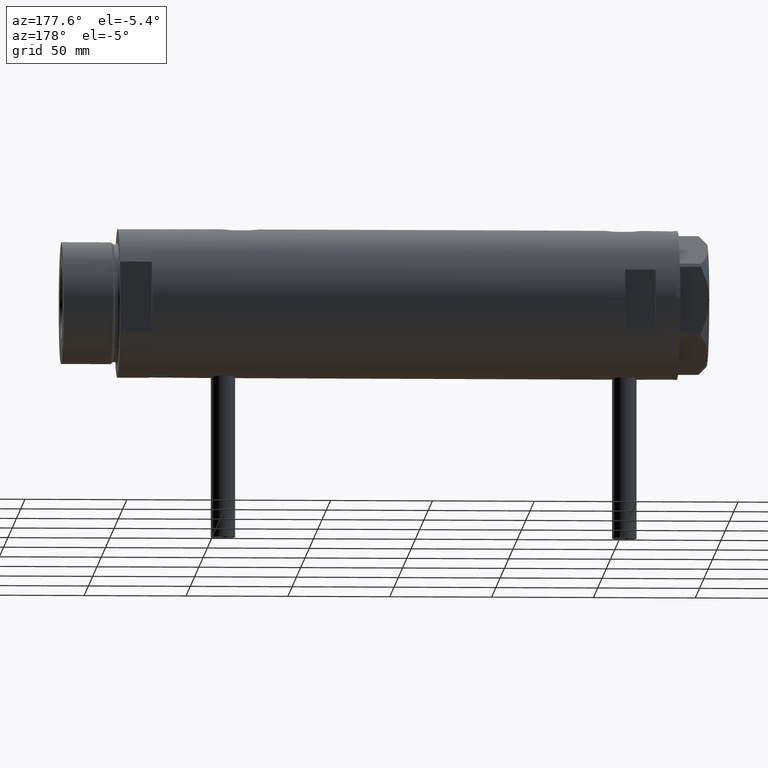
[diagram: clean part render]
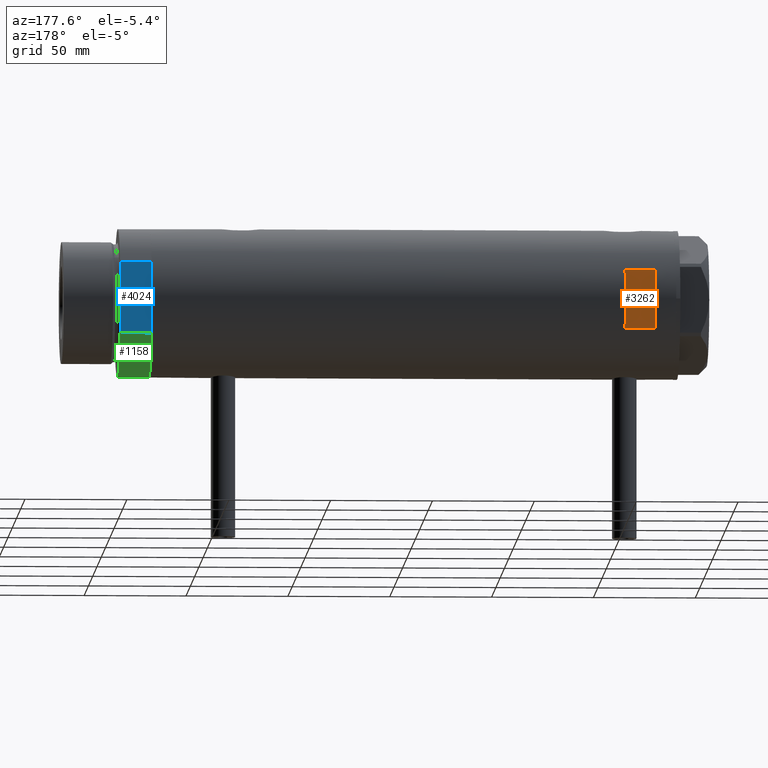
[diagram: same view with three faces highlighted in distinct colors, each labeled with its STEP entity id]
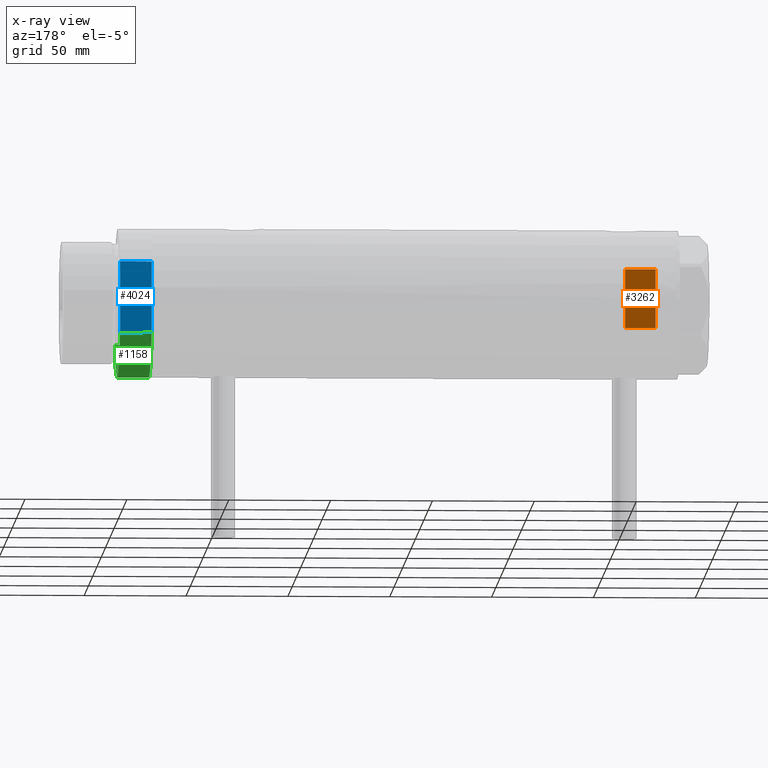
[diagram: x-ray of the same camera — body ghosted, the three highlighted faces saturated]
A machine part, auxiliary view with three faces highlighted in distinct colors.
The next image is the same camera in x-ray (body ghosted, the three faces saturated) — at least one of them is partly hidden behind the body in this view.
Their STEP definitions:

[orange] entity #3262 — the highlighted planar face has unit normal (0, -1, -0).
#503 = EDGE_CURVE ( 'NONE', #3055, #765, #1565, .T. ) ;
#765 = VERTEX_POINT ( 'NONE', #2075 ) ;
#832 = ORIENTED_EDGE ( 'NONE', *, *, #3891, .T. ) ;
#881 = VECTOR ( 'NONE', #2010, 1000.000000000000000 ) ;
#942 = CARTESIAN_POINT ( 'NONE',  ( -36.50000000000000000, 33.50000000000000000, 103.6500000000000057 ) ) ;
#952 = EDGE_CURVE ( 'NONE', #3055, #2279, #1985, .T. ) ;
#1109 = DIRECTION ( 'NONE',  ( 0.000000000000000000, -1.000000000000000000, -0.000000000000000000 ) ) ;
#1137 = LINE ( 'NONE', #2955, #2898 ) ;
#1282 = VERTEX_POINT ( 'NONE', #4286 ) ;
#1462 = ORIENTED_EDGE ( 'NONE', *, *, #1722, .T. ) ;
#1565 = LINE ( 'NONE', #2638, #2165 ) ;
#1722 = EDGE_CURVE ( 'NONE', #765, #1282, #1137, .T. ) ;
#1824 = FACE_OUTER_BOUND ( 'NONE', #2566, .T. ) ;
#1985 = LINE ( 'NONE', #942, #881 ) ;
#2003 = ORIENTED_EDGE ( 'NONE', *, *, #952, .F. ) ;
#2010 = DIRECTION ( 'NONE',  ( 1.000000000000000000, -0.000000000000000000, -0.000000000000000000 ) ) ;
#2075 = CARTESIAN_POINT ( 'NONE',  ( -14.49137674618942739, 33.50000000000000000, 118.6500000000000057 ) ) ;
#2165 = VECTOR ( 'NONE', #4431, 1000.000000000000000 ) ;
#2279 = VERTEX_POINT ( 'NONE', #4730 ) ;
#2284 = LINE ( 'NONE', #4473, #3752 ) ;
#2507 = AXIS2_PLACEMENT_3D ( 'NONE', #4785, #1109, #4067 ) ;
#2529 = ORIENTED_EDGE ( 'NONE', *, *, #503, .T. ) ;
#2566 = EDGE_LOOP ( 'NONE', ( #832, #2003, #2529, #1462 ) ) ;
#2628 = DIRECTION ( 'NONE',  ( -0.000000000000000000, -0.000000000000000000, -1.000000000000000000 ) ) ;
#2638 = CARTESIAN_POINT ( 'NONE',  ( -14.49137674618942739, 33.50000000000000000, -128.6500000000000057 ) ) ;
#2715 = CARTESIAN_POINT ( 'NONE',  ( -14.49137674618942917, 33.50000000000000000, 103.6500000000000057 ) ) ;
#2898 = VECTOR ( 'NONE', #3364, 1000.000000000000000 ) ;
#2955 = CARTESIAN_POINT ( 'NONE',  ( -36.50000000000000000, 33.50000000000000000, 118.6500000000000057 ) ) ;
#3055 = VERTEX_POINT ( 'NONE', #2715 ) ;
#3262 = ADVANCED_FACE ( 'NONE', ( #1824 ), #3308, .F. ) ;
#3308 = PLANE ( 'NONE',  #2507 ) ;
#3364 = DIRECTION ( 'NONE',  ( 1.000000000000000000, -0.000000000000000000, -0.000000000000000000 ) ) ;
#3752 = VECTOR ( 'NONE', #2628, 1000.000000000000000 ) ;
#3891 = EDGE_CURVE ( 'NONE', #1282, #2279, #2284, .T. ) ;
#4067 = DIRECTION ( 'NONE',  ( 0.000000000000000000, 0.000000000000000000, -1.000000000000000000 ) ) ;
#4286 = CARTESIAN_POINT ( 'NONE',  ( 14.49137674618942739, 33.50000000000000000, 118.6500000000000057 ) ) ;
#4431 = DIRECTION ( 'NONE',  ( 0.000000000000000000, 0.000000000000000000, 1.000000000000000000 ) ) ;
#4473 = CARTESIAN_POINT ( 'NONE',  ( 14.49137674618942739, 33.50000000000000000, -128.6500000000000057 ) ) ;
#4730 = CARTESIAN_POINT ( 'NONE',  ( 14.49137674618942917, 33.50000000000000000, 103.6500000000000057 ) ) ;
#4785 = CARTESIAN_POINT ( 'NONE',  ( -36.50000000000000000, 33.50000000000000000, 118.6500000000000057 ) ) ;

[blue] entity #4024 — the highlighted planar face has unit normal (0, -1, -0).
#18 = CARTESIAN_POINT ( 'NONE',  ( 0.000000000000000000, 32.00000000000000000, 0.000000000000000000 ) ) ;
#76 = CARTESIAN_POINT ( 'NONE',  ( -17.55704986607943141, 32.00000000000000000, 0.000000000000000000 ) ) ;
#454 = VERTEX_POINT ( 'NONE', #4505 ) ;
#630 = EDGE_LOOP ( 'NONE', ( #4006, #4019, #4695, #1807, #3989 ) ) ;
#703 = EDGE_CURVE ( 'NONE', #2754, #2080, #4608, .T. ) ;
#1103 = EDGE_CURVE ( 'NONE', #1405, #3854, #4697, .T. ) ;
#1200 = EDGE_CURVE ( 'NONE', #3854, #454, #3443, .T. ) ;
#1244 = FACE_OUTER_BOUND ( 'NONE', #630, .T. ) ;
#1309 = DIRECTION ( 'NONE',  ( -0.000000000000000000, -0.000000000000000000, 1.000000000000000000 ) ) ;
#1329 = EDGE_CURVE ( 'NONE', #454, #2080, #1752, .T. ) ;
#1405 = VERTEX_POINT ( 'NONE', #76 ) ;
#1562 = CARTESIAN_POINT ( 'NONE',  ( -17.55704986607943141, 32.00000000000000000, 0.000000000000000000 ) ) ;
#1643 = VECTOR ( 'NONE', #1309, 1000.000000000000000 ) ;
#1649 = AXIS2_PLACEMENT_3D ( 'NONE', #3531, #2353, #2784 ) ;
#1752 = LINE ( 'NONE', #3558, #4194 ) ;
#1807 = ORIENTED_EDGE ( 'NONE', *, *, #1103, .F. ) ;
#1938 = VECTOR ( 'NONE', #3767, 1000.000000000000000 ) ;
#1948 = CARTESIAN_POINT ( 'NONE',  ( -17.55704986607943141, 32.00000000000000000, 15.50000000000000000 ) ) ;
#1991 = CARTESIAN_POINT ( 'NONE',  ( -17.55704986607943141, 32.00000000000000000, 0.000000000000000000 ) ) ;
#2080 = VERTEX_POINT ( 'NONE', #4496 ) ;
#2353 = DIRECTION ( 'NONE',  ( 0.000000000000000000, -1.000000000000000000, 0.000000000000000000 ) ) ;
#2414 = VECTOR ( 'NONE', #3481, 1000.000000000000000 ) ;
#2668 = CARTESIAN_POINT ( 'NONE',  ( -17.55704986607943141, 32.00000000000000000, 0.000000000000000000 ) ) ;
#2728 = PLANE ( 'NONE',  #1649 ) ;
#2754 = VERTEX_POINT ( 'NONE', #4318 ) ;
#2784 = DIRECTION ( 'NONE',  ( 0.000000000000000000, -0.000000000000000000, -1.000000000000000000 ) ) ;
#2878 = DIRECTION ( 'NONE',  ( -0.000000000000000000, -0.000000000000000000, 1.000000000000000000 ) ) ;
#3442 = DIRECTION ( 'NONE',  ( 1.000000000000000000, 0.000000000000000000, 0.000000000000000000 ) ) ;
#3443 = LINE ( 'NONE', #2668, #1938 ) ;
#3481 = DIRECTION ( 'NONE',  ( 1.000000000000000000, 0.000000000000000000, 0.000000000000000000 ) ) ;
#3531 = CARTESIAN_POINT ( 'NONE',  ( -17.55704986607943141, 32.00000000000000000, 0.000000000000000000 ) ) ;
#3558 = CARTESIAN_POINT ( 'NONE',  ( 17.55704986607943141, 32.00000000000000000, 0.000000000000000000 ) ) ;
#3581 = VECTOR ( 'NONE', #3442, 1000.000000000000000 ) ;
#3599 = EDGE_CURVE ( 'NONE', #1405, #2754, #3861, .T. ) ;
#3767 = DIRECTION ( 'NONE',  ( 1.000000000000000000, 0.000000000000000000, 0.000000000000000000 ) ) ;
#3854 = VERTEX_POINT ( 'NONE', #18 ) ;
#3861 = LINE ( 'NONE', #1562, #1643 ) ;
#3989 = ORIENTED_EDGE ( 'NONE', *, *, #3599, .T. ) ;
#4006 = ORIENTED_EDGE ( 'NONE', *, *, #703, .T. ) ;
#4019 = ORIENTED_EDGE ( 'NONE', *, *, #1329, .F. ) ;
#4024 = ADVANCED_FACE ( 'NONE', ( #1244 ), #2728, .F. ) ;
#4194 = VECTOR ( 'NONE', #2878, 1000.000000000000000 ) ;
#4318 = CARTESIAN_POINT ( 'NONE',  ( -17.55704986607943496, 32.00000000000000000, 15.50000000000000000 ) ) ;
#4496 = CARTESIAN_POINT ( 'NONE',  ( 17.55704986607943496, 32.00000000000000000, 15.50000000000000000 ) ) ;
#4505 = CARTESIAN_POINT ( 'NONE',  ( 17.55704986607943496, 32.00000000000000000, 0.000000000000000000 ) ) ;
#4608 = LINE ( 'NONE', #1948, #3581 ) ;
#4695 = ORIENTED_EDGE ( 'NONE', *, *, #1200, .F. ) ;
#4697 = LINE ( 'NONE', #1991, #2414 ) ;

[green] entity #1158 — the highlighted cylindrical surface (partial cylindrical patch) has radius 36.5 mm, axis along (-1, -0, 0).
#305 = EDGE_CURVE ( 'NONE', #3859, #454, #2488, .T. ) ;
#351 = ORIENTED_EDGE ( 'NONE', *, *, #2629, .F. ) ;
#405 = AXIS2_PLACEMENT_3D ( 'NONE', #2696, #862, #488 ) ;
#454 = VERTEX_POINT ( 'NONE', #4505 ) ;
#488 = DIRECTION ( 'NONE',  ( 1.000000000000000000, 0.000000000000000000, 0.000000000000000000 ) ) ;
#690 = ORIENTED_EDGE ( 'NONE', *, *, #305, .T. ) ;
#839 = CARTESIAN_POINT ( 'NONE',  ( 0.000000000000000000, 0.000000000000000000, 15.50000000000000000 ) ) ;
#862 = DIRECTION ( 'NONE',  ( 0.000000000000000000, 0.000000000000000000, 1.000000000000000000 ) ) ;
#1158 = ADVANCED_FACE ( 'NONE', ( #3026 ), #2343, .T. ) ;
#1329 = EDGE_CURVE ( 'NONE', #454, #2080, #1752, .T. ) ;
#1488 = CIRCLE ( 'NONE', #2581, 36.50000000000000000 ) ;
#1719 = DIRECTION ( 'NONE',  ( 1.000000000000000000, 0.000000000000000000, 0.000000000000000000 ) ) ;
#1752 = LINE ( 'NONE', #3558, #4194 ) ;
#1829 = CARTESIAN_POINT ( 'NONE',  ( 17.55704986607943141, -32.00000000000000000, 0.000000000000000000 ) ) ;
#1863 = CARTESIAN_POINT ( 'NONE',  ( 17.55704986607943141, -32.00000000000000000, 0.000000000000000000 ) ) ;
#1909 = VERTEX_POINT ( 'NONE', #2120 ) ;
#1923 = DIRECTION ( 'NONE',  ( -0.000000000000000000, -0.000000000000000000, 1.000000000000000000 ) ) ;
#2080 = VERTEX_POINT ( 'NONE', #4496 ) ;
#2120 = CARTESIAN_POINT ( 'NONE',  ( 17.55704986607943496, -32.00000000000000000, 15.50000000000000000 ) ) ;
#2182 = ORIENTED_EDGE ( 'NONE', *, *, #1329, .T. ) ;
#2189 = LINE ( 'NONE', #1829, #2838 ) ;
#2343 = CYLINDRICAL_SURFACE ( 'NONE', #4035, 36.50000000000000000 ) ;
#2488 = CIRCLE ( 'NONE', #405, 36.50000000000000000 ) ;
#2542 = DIRECTION ( 'NONE',  ( 0.000000000000000000, 0.000000000000000000, 1.000000000000000000 ) ) ;
#2581 = AXIS2_PLACEMENT_3D ( 'NONE', #3232, #2542, #1719 ) ;
#2620 = DIRECTION ( 'NONE',  ( -1.000000000000000000, 0.000000000000000000, 0.000000000000000000 ) ) ;
#2629 = EDGE_CURVE ( 'NONE', #1909, #2080, #1488, .T. ) ;
#2696 = CARTESIAN_POINT ( 'NONE',  ( 0.000000000000000000, 0.000000000000000000, 0.000000000000000000 ) ) ;
#2838 = VECTOR ( 'NONE', #1923, 1000.000000000000000 ) ;
#2878 = DIRECTION ( 'NONE',  ( -0.000000000000000000, -0.000000000000000000, 1.000000000000000000 ) ) ;
#2879 = EDGE_CURVE ( 'NONE', #3859, #1909, #2189, .T. ) ;
#3026 = FACE_OUTER_BOUND ( 'NONE', #3489, .T. ) ;
#3166 = ORIENTED_EDGE ( 'NONE', *, *, #2879, .F. ) ;
#3232 = CARTESIAN_POINT ( 'NONE',  ( 0.000000000000000000, 0.000000000000000000, 15.50000000000000000 ) ) ;
#3489 = EDGE_LOOP ( 'NONE', ( #351, #3166, #690, #2182 ) ) ;
#3558 = CARTESIAN_POINT ( 'NONE',  ( 17.55704986607943141, 32.00000000000000000, 0.000000000000000000 ) ) ;
#3840 = DIRECTION ( 'NONE',  ( -0.000000000000000000, -0.000000000000000000, -1.000000000000000000 ) ) ;
#3859 = VERTEX_POINT ( 'NONE', #1863 ) ;
#4035 = AXIS2_PLACEMENT_3D ( 'NONE', #839, #3840, #2620 ) ;
#4194 = VECTOR ( 'NONE', #2878, 1000.000000000000000 ) ;
#4496 = CARTESIAN_POINT ( 'NONE',  ( 17.55704986607943496, 32.00000000000000000, 15.50000000000000000 ) ) ;
#4505 = CARTESIAN_POINT ( 'NONE',  ( 17.55704986607943496, 32.00000000000000000, 0.000000000000000000 ) ) ;